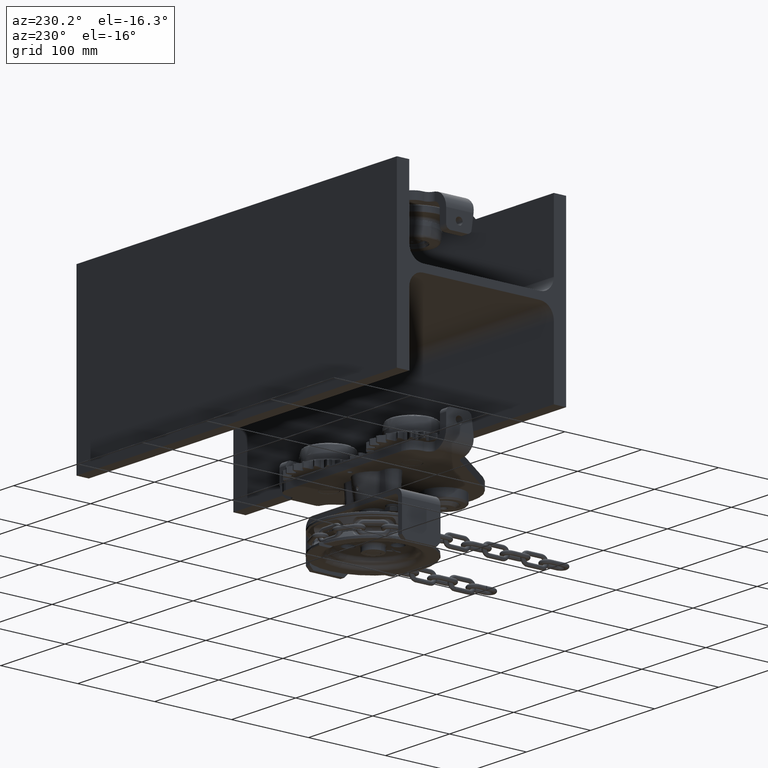
[diagram: clean part render]
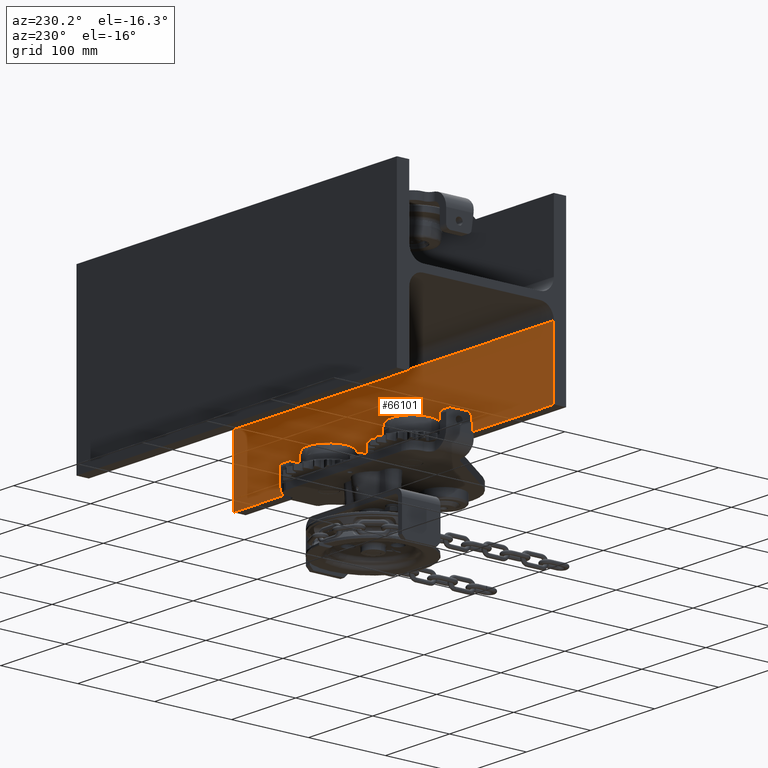
[diagram: same view with one face highlighted and labeled with its STEP entity id]
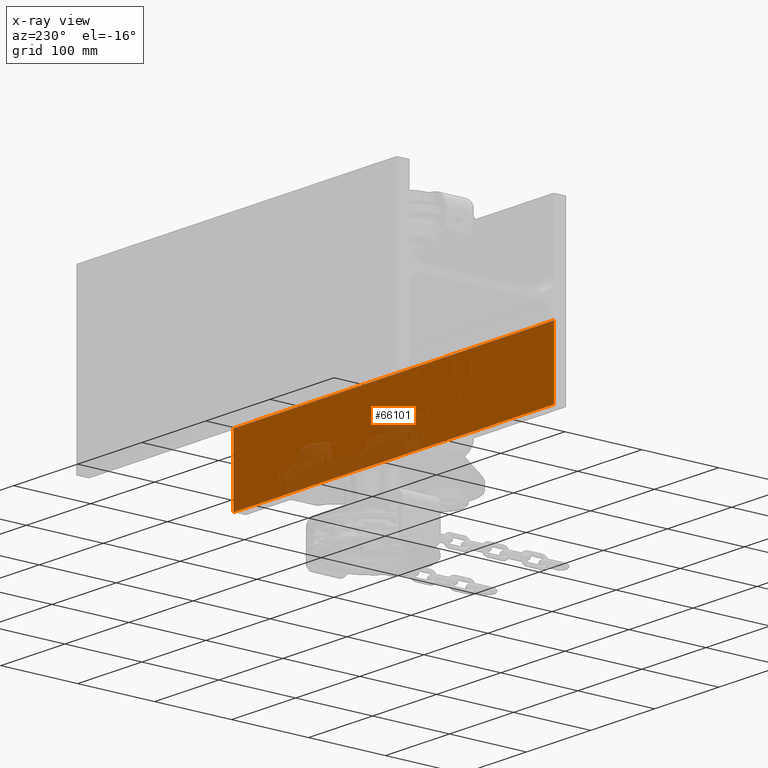
[diagram: x-ray of the same camera — body ghosted, the highlighted face saturated]
A machine part, auxiliary view. The second image highlights one B-rep face of the part: STEP entity #66101.
The next image is the same camera in x-ray: the body ghosted, the highlighted face saturated — about 16% of this face is hidden behind the body in this view.
In plain terms, the highlighted planar face has unit normal (-0, 1, 0).
Its self-contained STEP definition (entity closure, byte-faithful):
#1134 = VERTEX_POINT ( 'NONE', #64854 ) ;
#1415 = EDGE_CURVE ( 'NONE', #23241, #70335, #10798, .T. ) ;
#5036 = ORIENTED_EDGE ( 'NONE', *, *, #43402, .F. ) ;
#7903 = VECTOR ( 'NONE', #71703, 1000.000000000000000 ) ;
#10798 = LINE ( 'NONE', #23479, #18348 ) ;
#11652 = LINE ( 'NONE', #86723, #7903 ) ;
#15714 = VECTOR ( 'NONE', #28019, 1000.000000000000000 ) ;
#18348 = VECTOR ( 'NONE', #22439, 1000.000000000000000 ) ;
#22439 = DIRECTION ( 'NONE',  ( -1.925929944387235900E-034, -1.622250703616490400E-016, 1.000000000000000000 ) ) ;
#22869 = CARTESIAN_POINT ( 'NONE',  ( 250.0000000000000000, -93.99999999999990100, -109.9999999999996300 ) ) ;
#23241 = VERTEX_POINT ( 'NONE', #78963 ) ;
#23479 = CARTESIAN_POINT ( 'NONE',  ( -250.0000000000001100, -93.99999999999990100, -109.9999999999996300 ) ) ;
#25485 = AXIS2_PLACEMENT_3D ( 'NONE', #62832, #55198, #70880 ) ;
#25501 = VERTEX_POINT ( 'NONE', #22869 ) ;
#28019 = DIRECTION ( 'NONE',  ( -1.925929944387235900E-034, -1.622250703616490400E-016, 1.000000000000000000 ) ) ;
#29779 = EDGE_CURVE ( 'NONE', #25501, #1134, #57100, .T. ) ;
#30627 = ORIENTED_EDGE ( 'NONE', *, *, #29779, .F. ) ;
#35007 = EDGE_LOOP ( 'NONE', ( #30627, #5036, #51836, #71543 ) ) ;
#38308 = CARTESIAN_POINT ( 'NONE',  ( -250.0000000000001100, -93.99999999999991500, -22.74999999999958100 ) ) ;
#43402 = EDGE_CURVE ( 'NONE', #23241, #25501, #11652, .T. ) ;
#45006 = FACE_OUTER_BOUND ( 'NONE', #35007, .T. ) ;
#45364 = EDGE_CURVE ( 'NONE', #70335, #1134, #103653, .T. ) ;
#51836 = ORIENTED_EDGE ( 'NONE', *, *, #1415, .T. ) ;
#55198 = DIRECTION ( 'NONE',  ( -2.297505481454627600E-050, 1.000000000000000000, 1.622250703616490400E-016 ) ) ;
#57100 = LINE ( 'NONE', #75900, #15714 ) ;
#62832 = CARTESIAN_POINT ( 'NONE',  ( -250.0000000000001100, -93.99999999999990100, -109.9999999999996300 ) ) ;
#64854 = CARTESIAN_POINT ( 'NONE',  ( 250.0000000000000000, -93.99999999999991500, -22.74999999999958100 ) ) ;
#66101 = ADVANCED_FACE ( 'NONE', ( #45006 ), #93559, .T. ) ;
#70335 = VERTEX_POINT ( 'NONE', #95923 ) ;
#70880 = DIRECTION ( 'NONE',  ( -1.925929944387235900E-034, -1.622250703616490400E-016, 1.000000000000000000 ) ) ;
#71543 = ORIENTED_EDGE ( 'NONE', *, *, #45364, .T. ) ;
#71703 = DIRECTION ( 'NONE',  ( 1.000000000000000000, 0.0000000000000000000, 7.703719777548941700E-034 ) ) ;
#75900 = CARTESIAN_POINT ( 'NONE',  ( 250.0000000000000000, -93.99999999999990100, -109.9999999999996300 ) ) ;
#78963 = CARTESIAN_POINT ( 'NONE',  ( -250.0000000000001100, -93.99999999999990100, -109.9999999999996300 ) ) ;
#80541 = DIRECTION ( 'NONE',  ( 1.000000000000000000, 0.0000000000000000000, 7.703719777548941700E-034 ) ) ;
#86723 = CARTESIAN_POINT ( 'NONE',  ( -250.0000000000001100, -93.99999999999990100, -109.9999999999996300 ) ) ;
#91290 = VECTOR ( 'NONE', #80541, 1000.000000000000000 ) ;
#93559 = PLANE ( 'NONE',  #25485 ) ;
#95923 = CARTESIAN_POINT ( 'NONE',  ( -250.0000000000001100, -93.99999999999991500, -22.74999999999958100 ) ) ;
#103653 = LINE ( 'NONE', #38308, #91290 ) ;